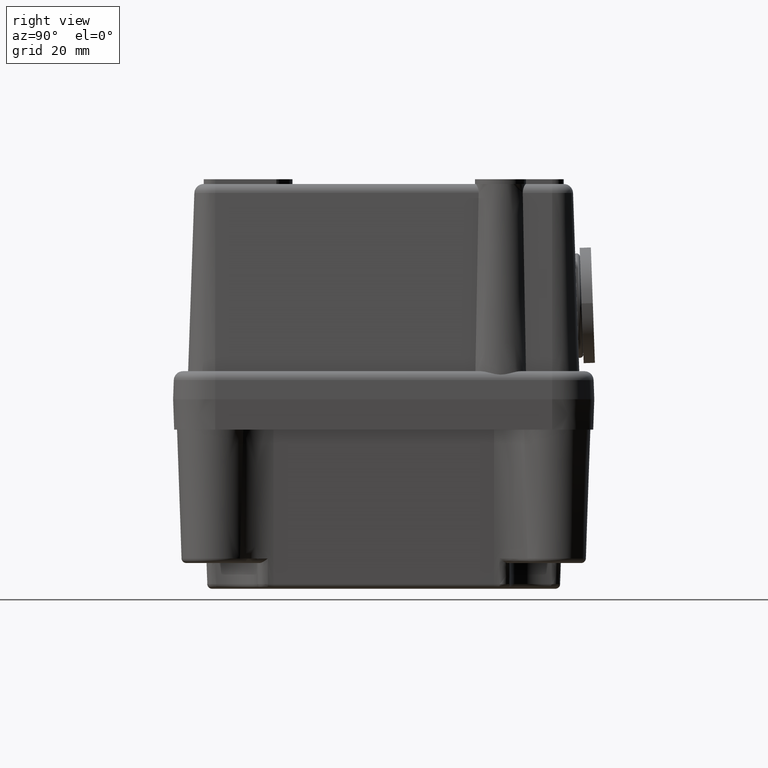
[diagram: clean part render]
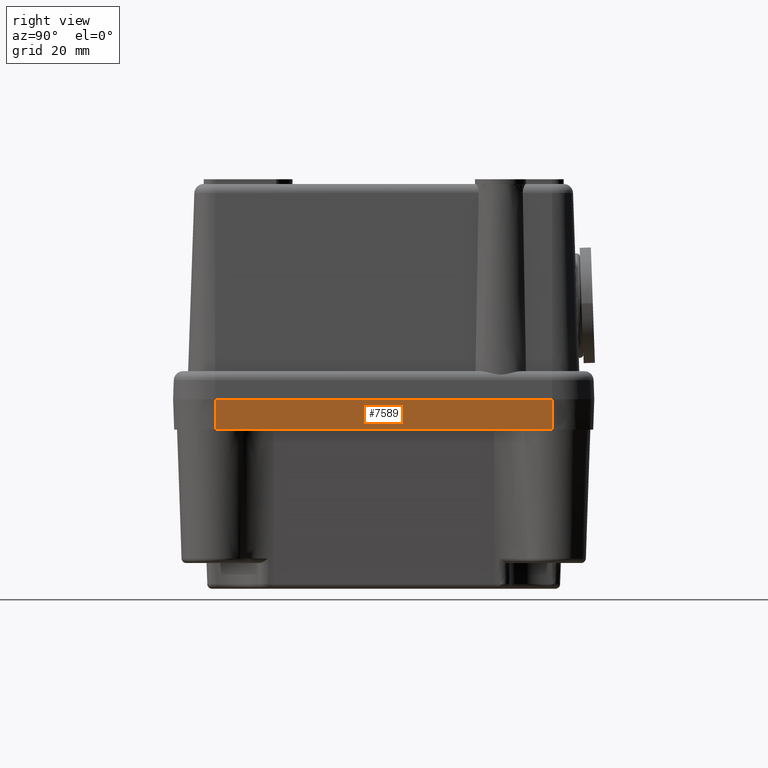
[diagram: same view with one face highlighted and labeled with its STEP entity id]
A machine part, right view. The second image highlights one B-rep face of the part: STEP entity #7589.
In plain terms, the highlighted planar face has unit normal (0.9994, 0, -0.0349).
Its self-contained STEP definition (entity closure, byte-faithful):
#7431=CARTESIAN_POINT('',(-8.489736472104887,4.702105119166902,6.499999999999986));
#7432=VERTEX_POINT('',#7431);
#7440=CARTESIAN_POINT('',(-8.489736472104880,-67.297894880833070,6.499999999999986));
#7441=VERTEX_POINT('',#7440);
#7442=CARTESIAN_POINT('',(-8.489736472104880,-67.297894880833070,6.499999999999986));
#7443=DIRECTION('',(0.0,1.0,0.0));
#7444=VECTOR('',#7443,71.999999999999972);
#7445=LINE('',#7442,#7444);
#7446=EDGE_CURVE('',#7441,#7432,#7445,.T.);
#7547=CARTESIAN_POINT('',(-8.716721473801240,-67.297894880833070,0.0));
#7548=VERTEX_POINT('',#7547);
#7549=CARTESIAN_POINT('',(-8.716721473801240,-67.297894880833070,0.0));
#7550=DIRECTION('',(0.034899496702501,0.0,0.999390827019096));
#7551=VECTOR('',#7550,6.503962037942327);
#7552=LINE('',#7549,#7551);
#7553=EDGE_CURVE('',#7548,#7441,#7552,.T.);
#7566=CARTESIAN_POINT('',(-8.716721473801240,-67.297894880833070,0.0));
#7567=DIRECTION('',(-0.999390827019096,-6.164148E-017,0.034899496702501));
#7568=DIRECTION('',(0.0,-1.0,0.0));
#7569=AXIS2_PLACEMENT_3D('',#7566,#7567,#7568);
#7570=PLANE('',#7569);
#7571=ORIENTED_EDGE('',*,*,#7446,.T.);
#7572=CARTESIAN_POINT('',(-8.716721473801243,4.702105119166902,0.0));
#7573=VERTEX_POINT('',#7572);
#7574=CARTESIAN_POINT('',(-8.716721473801243,4.702105119166902,0.0));
#7575=DIRECTION('',(0.034899496702500,0.0,0.999390827019096));
#7576=VECTOR('',#7575,6.503962037942327);
#7577=LINE('',#7574,#7576);
#7578=EDGE_CURVE('',#7573,#7432,#7577,.T.);
#7579=ORIENTED_EDGE('',*,*,#7578,.F.);
#7580=CARTESIAN_POINT('',(-8.716721473801243,4.702105119166902,0.0));
#7581=DIRECTION('',(0.0,-1.0,0.0));
#7582=VECTOR('',#7581,71.999999999999972);
#7583=LINE('',#7580,#7582);
#7584=EDGE_CURVE('',#7573,#7548,#7583,.T.);
#7585=ORIENTED_EDGE('',*,*,#7584,.T.);
#7586=ORIENTED_EDGE('',*,*,#7553,.T.);
#7587=EDGE_LOOP('',(#7571,#7579,#7585,#7586));
#7588=FACE_OUTER_BOUND('',#7587,.T.);
#7589=ADVANCED_FACE('',(#7588),#7570,.T.);